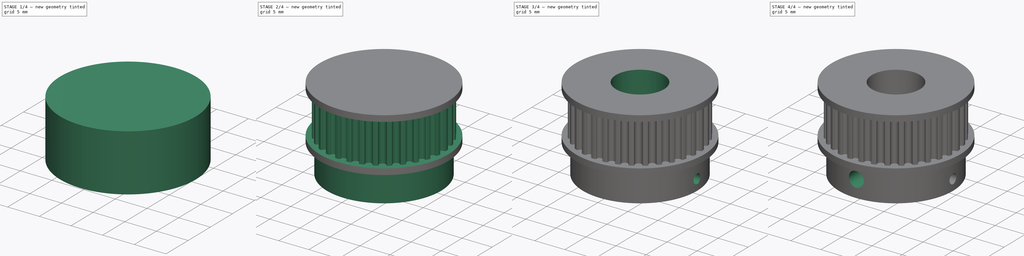
[diagram: build sequence overview — one tinted view per stage of 4, left to right]
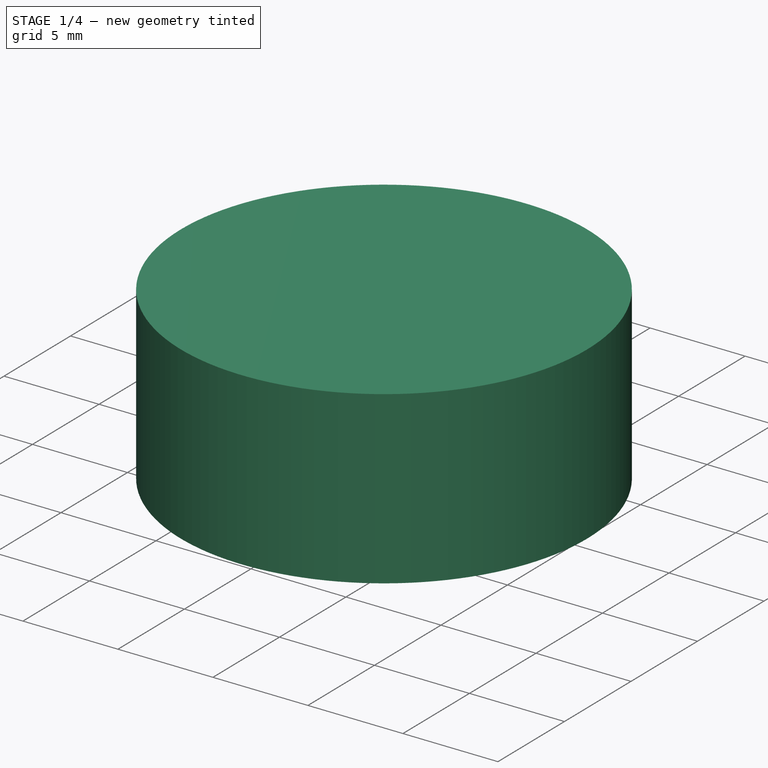
[diagram: stage 1 of 4 — iso view after this stage's code; geometry added in this stage tinted green]
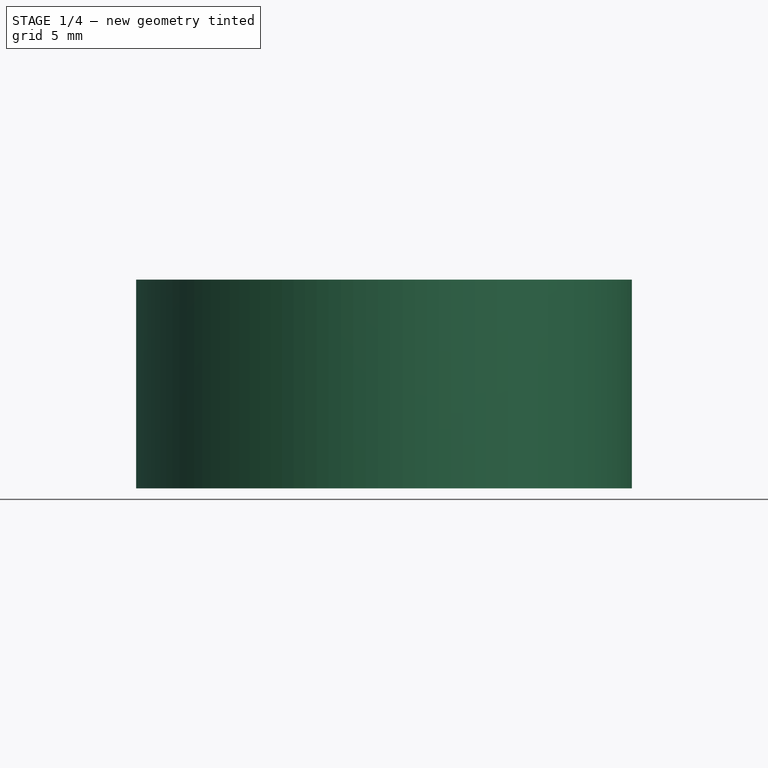
[diagram: stage 1 of 4 — front view after this stage's code; geometry added in this stage tinted green]
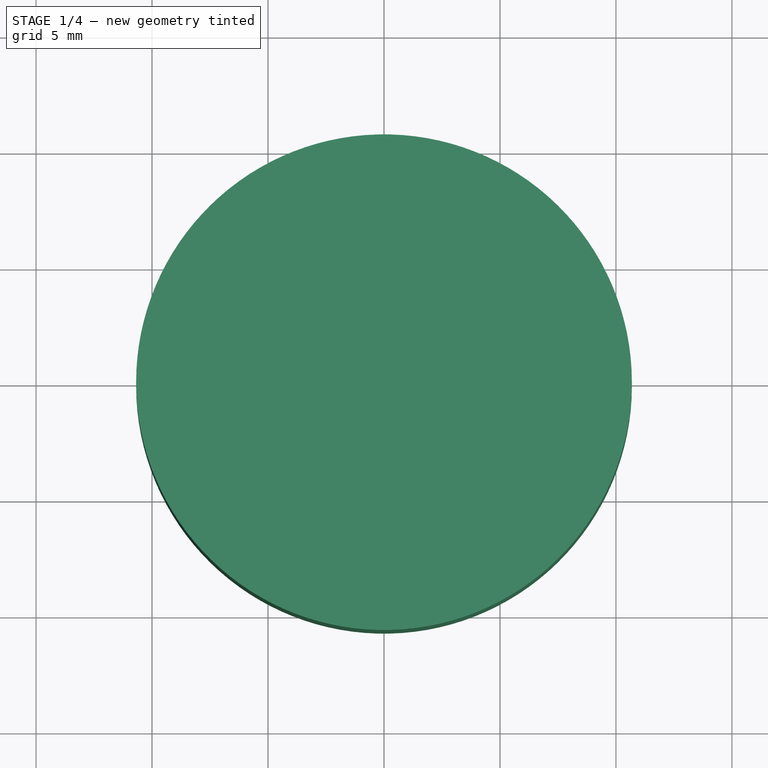
[diagram: stage 1 of 4 — top view after this stage's code; geometry added in this stage tinted green]
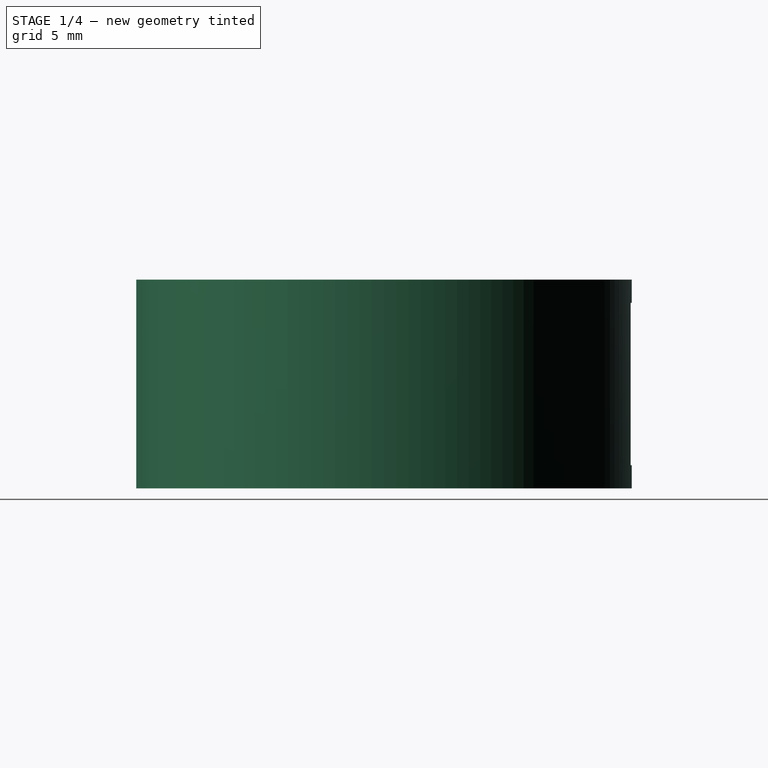
[diagram: stage 1 of 4 — right view after this stage's code; geometry added in this stage tinted green]
FCSTD DOCUMENT  (FreeCAD 0.19R)
Label: small_pulley
License: All rights reserved
LicenseURL: http://en.wikipedia.org/wiki/All_rights_reserved
objects: Sketcher::SketchObject×6, PartDesign::Hole×4, PartDesign::Pad×2, PartDesign::Pocket×2, Spreadsheet::Sheet×1, PartDesign::PolarPattern×1, PartDesign::Body×1
note: 24 computed .brp shape members not serialized (recipe doc carries the construction recipe); baked Part::Feature solids carry a one-line shape summary decoded from their .brp

FEATURE [Spreadsheet::Sheet] Spreadsheet
  cells = A1=No. of teeth; B1=Pitch diameter; C1=Dedentum Dia; D1=PCR; E1=Dedentum Radius; F1=Addentum Radius; G1=Flange Rad; H1=Shaft Dia; I1=Belt  width; J1=<< Properties definition; A2=n; B2=D; C2=d; D2=R; E2=r; F2=Ar; G2=F; H2=a; I2=w; J2=<< Variable Names; A3(n)=32; B3(D)==A3 * 2 / 3.141592; C3(d)==B3 - 2 * 1.126; D3(R)==B3 / 2; E3(r)==C3 / 2; F3(Ar)==D3 - 0.376; G3(F)==R + 0.5; H3(a)=8; I3(w)=6; J3=<< Variable Values; A4=Edit this; H4=Edit this; I4=Edit this
FEATURE [Sketcher::SketchObject] Sketch
  FullyConstrained = true
  MapMode = 5
  Support = -> [XY_Plane]
  expr: Constraints[1] = Spreadsheet.F
  sketch-geometry (1):
    g0: Circle CenterX=0 CenterY=0 CenterZ=0 NormalX=0 NormalY=0 NormalZ=1 AngleXU=0 Radius=10.6859
  constraints (2):
    c: Coincident(g0,g-1)
    c: Radius(g0) = 10.6859
FEATURE [PartDesign::Pad] Pad
  AllowMultiFace = false
  Direction = (1,1,1)
  Length = 9
  Length2 = 100
  Profile = -> Sketch
  Type = 0
  expr: Length = Spreadsheet.w * 1.5
FEATURE [Sketcher::SketchObject] Sketch001
  AttachmentOffset = pos=(0,0,-1) rot=(0,0,1;0rad)
  FullyConstrained = true
  MapMode = 5
  Placement = pos=(0,0,8) rot=(0,0,1;0rad)
  Support = -> [Pad]
  expr: Constraints[2] = Spreadsheet.r + 0.555
  expr: Constraints[14] = Spreadsheet.Ar
  expr: .AttachmentOffset.Base.z = -1 * Spreadsheet.w / 4 + 0.5
  sketch-geometry (8):
    g0: ArcOfCircle CenterX=0 CenterY=9.61492 CenterZ=0 NormalX=0 NormalY=0 NormalZ=1 AngleXU=0 Radius=0.555 StartAngle=3.06042 EndAngle=6.36436
    g1: ArcOfCircle CenterX=-0.703173 CenterY=9.65992 CenterZ=0 NormalX=0 NormalY=0 NormalZ=1 AngleXU=0 Radius=0.15 StartAngle=0 EndAngle=1.5708
    g2: ArcOfCircle CenterX=0.703173 CenterY=9.65992 CenterZ=0 NormalX=0 NormalY=0 NormalZ=1 AngleXU=0 Radius=0.15 StartAngle=1.5708 EndAngle=3.14159
    g3: LineSegment StartX=-0.703173 StartY=9.80992 StartZ=0 EndX=-1 EndY=9.80992 EndZ=0
    g4: LineSegment StartX=0.703173 StartY=9.80992 StartZ=0 EndX=1 EndY=9.80992 EndZ=0
    g5: LineSegment StartX=-1 StartY=9.80992 StartZ=0 EndX=-1.20388 EndY=11.8099 EndZ=0
    g6: LineSegment StartX=-1.20388 StartY=11.8099 StartZ=0 EndX=1.20388 EndY=11.8099 EndZ=0
    g7: LineSegment StartX=1.20388 StartY=11.8099 StartZ=0 EndX=1 EndY=9.80992 EndZ=0
  constraints (27):
    c: PointOnObject(g0,g-2)
    c: Radius(g0) = 0.555
    c: DistanceY(g-1,g0) = 9.61492
    c: Coincident(g1,g0)
    c: Radius(g1) = 0.15
    c: Radius(g2) = 0.15
    c: Horizontal(g1,g2)
    c: Coincident(g3,g1)
    c: Horizontal(g3)
    c: Coincident(g4,g2)
    c: Horizontal(g4)
    c: DistanceX(g3,g4) = 2
    c: DistanceX(g3,g-1) = 1
    c: Coincident(g0,g2)
    c: DistanceY(g-1,g1) = 9.80992
    c: Horizontal(g0,g0)
    c: Horizontal(g0,g1)
    c: Vertical(g1,g1)
    c: Vertical(g2,g2)
    c: Coincident(g3,g5)
    c: Coincident(g5,g6)
    c: Horizontal(g6)
    c: Coincident(g6,g7)
    c: Coincident(g7,g4)
    c: DistanceY(g7,g7) = 2
    c: PointOnObject(g-1,g5)
    c: PointOnObject(g-1,g7)
FEATURE [PartDesign::Pocket] Pocket
  AllowMultiFace = false
  BaseFeature = -> Pad
  Length = 7
  Length2 = 100
  Profile = -> Sketch001
  Type = 0
  expr: Length = Spreadsheet.w + 1
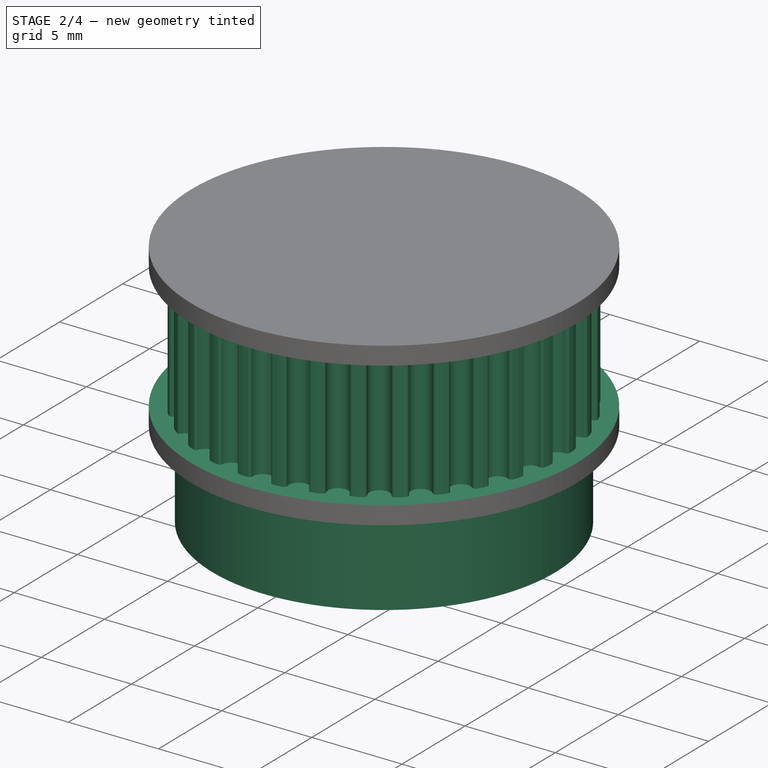
[diagram: stage 2 of 4 — iso view after this stage's code; geometry added in this stage tinted green]
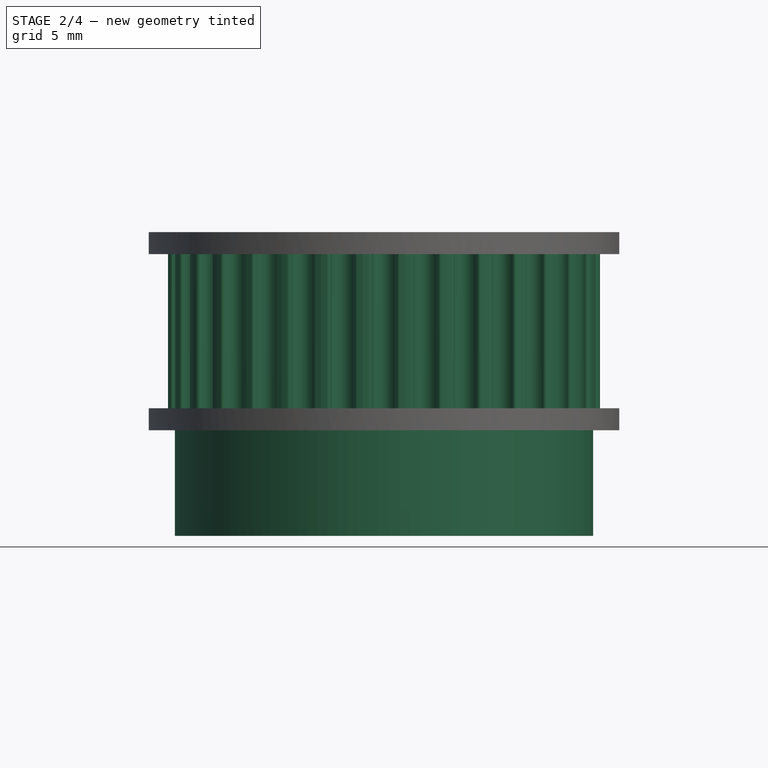
[diagram: stage 2 of 4 — front view after this stage's code; geometry added in this stage tinted green]
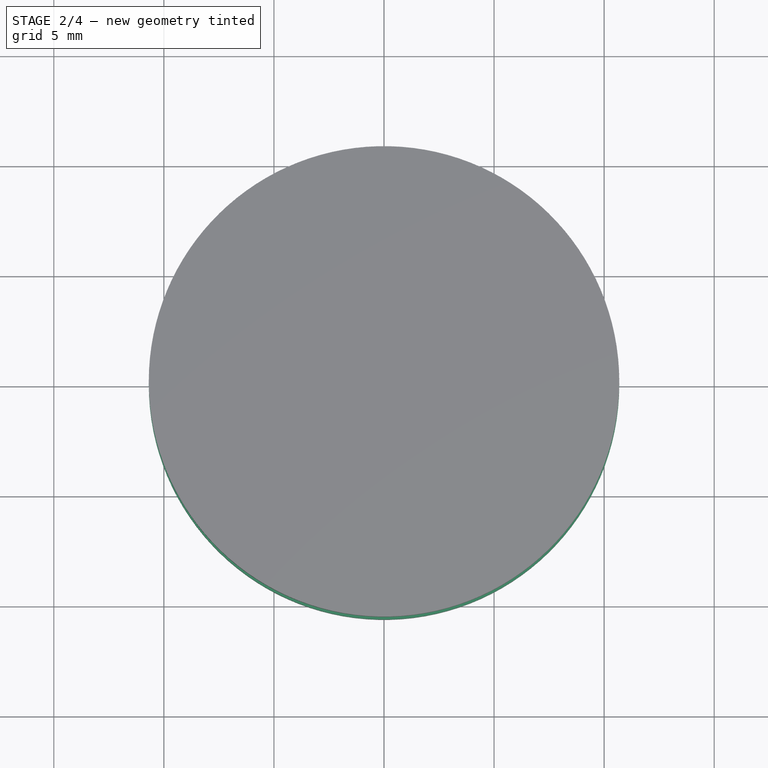
[diagram: stage 2 of 4 — top view after this stage's code; geometry added in this stage tinted green]
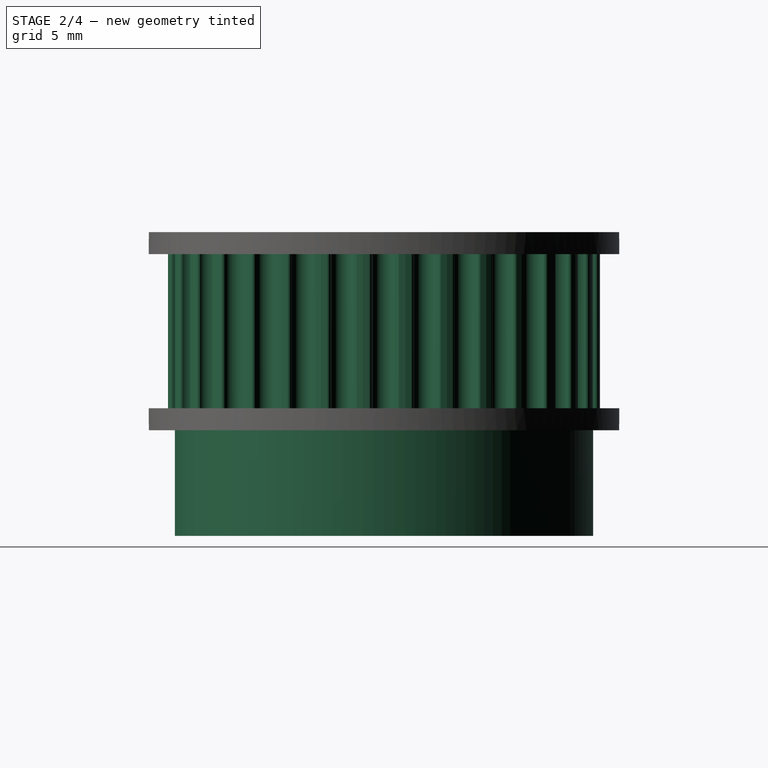
[diagram: stage 2 of 4 — right view after this stage's code; geometry added in this stage tinted green]
FEATURE [PartDesign::PolarPattern] PolarPattern
  Angle = 360
  Axis = -> Z_Axis
  BaseFeature = -> Pocket
  Occurrences = 32
  Originals = -> [Pocket]
  expr: Occurrences = Spreadsheet.n
FEATURE [Sketcher::SketchObject] Sketch002
  FullyConstrained = true
  Placement = pos=(0,0,0) rot=(1,0,0;3.14159rad)
  expr: Constraints[1] = Spreadsheet.a + 11
  sketch-geometry (1):
    g0: Circle CenterX=0 CenterY=0 CenterZ=0 NormalX=0 NormalY=0 NormalZ=1 AngleXU=0 Radius=9.5
  constraints (2):
    c: Coincident(g0,g-1)
    c: Diameter(g0) = 19
FEATURE [PartDesign::Pad] Pad001
  AllowMultiFace = false
  BaseFeature = -> PolarPattern
  Direction = (1,1,1)
  Length = 4.8
  Length2 = 100
  Profile = -> Sketch002
  Type = 0
  expr: Length = Spreadsheet.w * 0.8
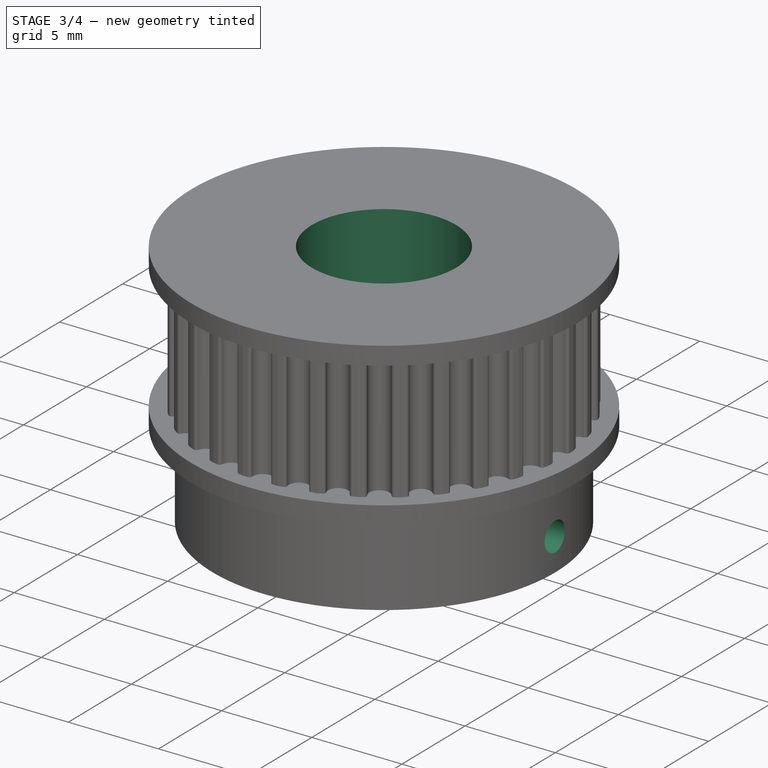
[diagram: stage 3 of 4 — iso view after this stage's code; geometry added in this stage tinted green]
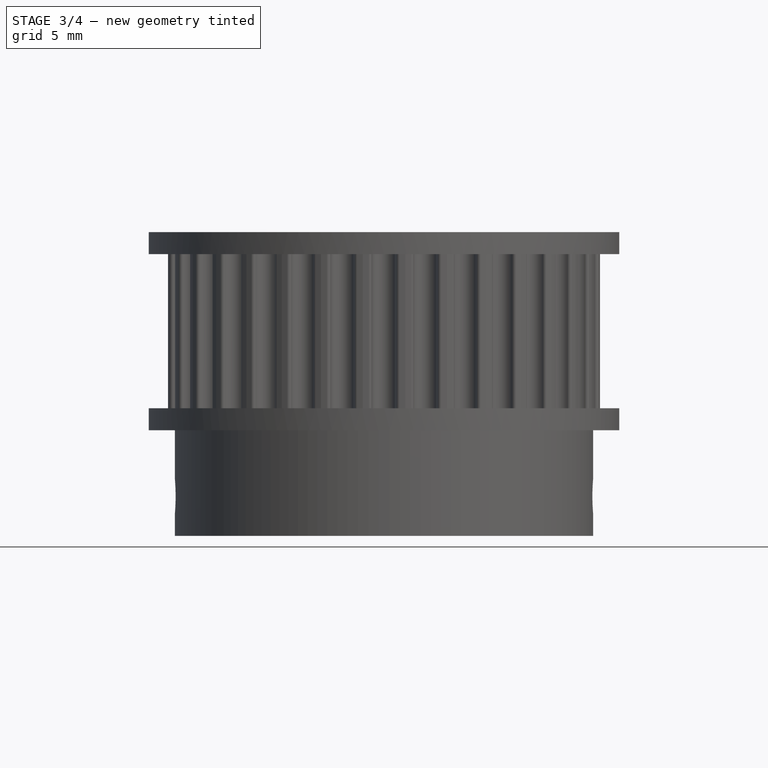
[diagram: stage 3 of 4 — front view after this stage's code; geometry added in this stage tinted green]
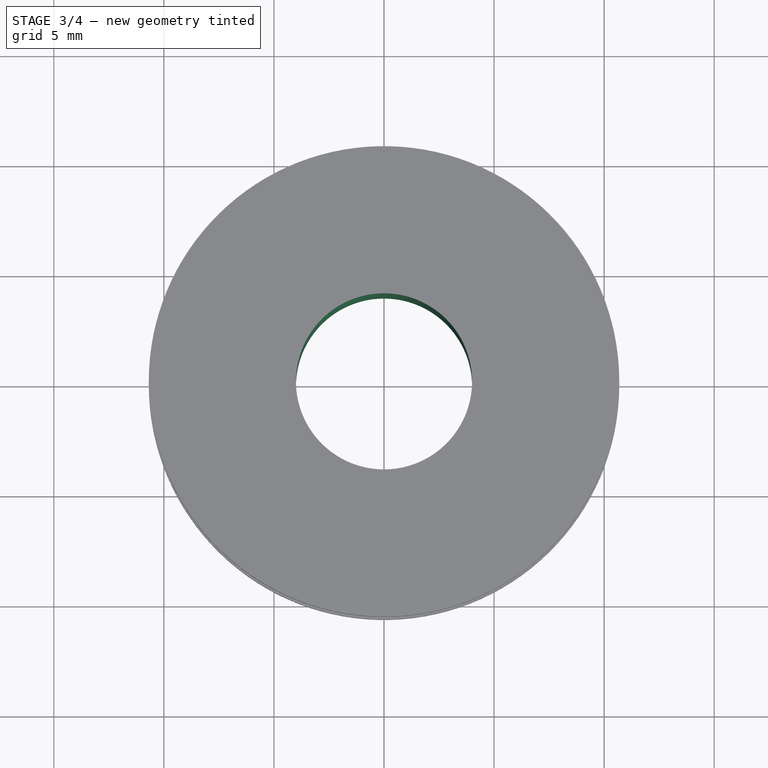
[diagram: stage 3 of 4 — top view after this stage's code; geometry added in this stage tinted green]
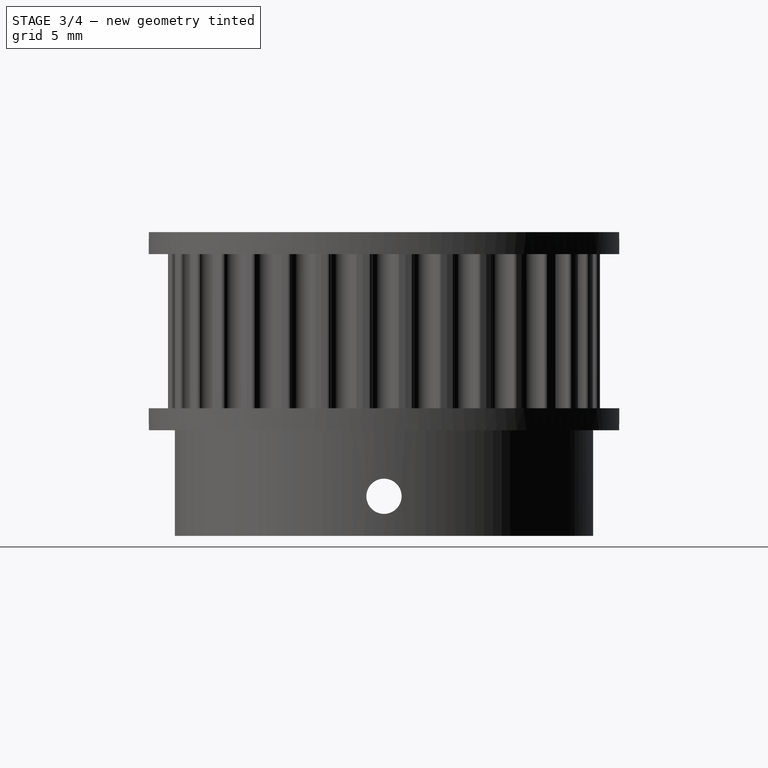
[diagram: stage 3 of 4 — right view after this stage's code; geometry added in this stage tinted green]
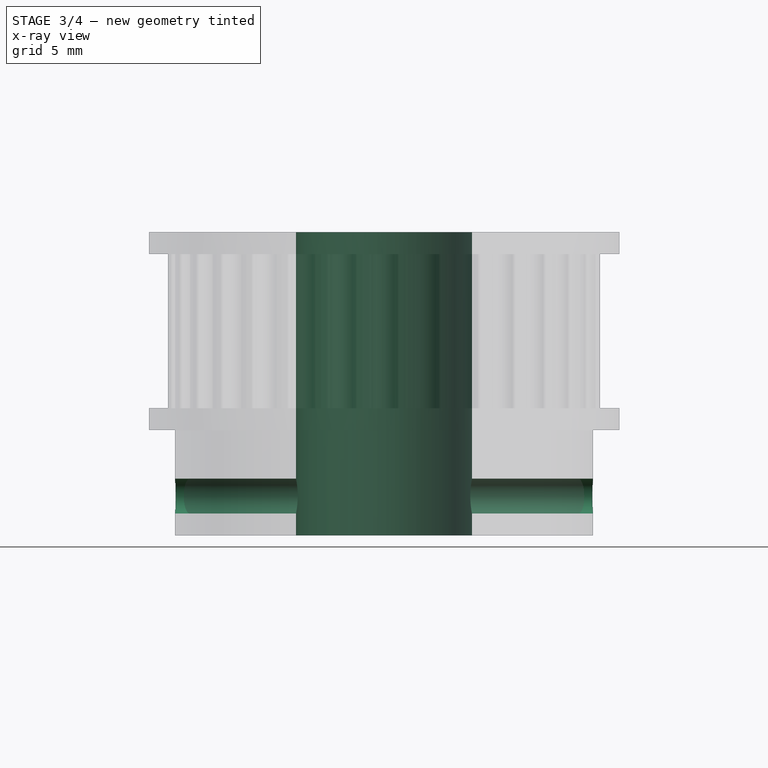
[diagram: stage 3 of 4 — x-ray composite at the front view; earlier geometry ghosted, this stage's added geometry solid]
FEATURE [Sketcher::SketchObject] Sketch003
  FullyConstrained = true
  Placement = pos=(0,0,0) rot=(1,0,0;3.14159rad)
  expr: Constraints[1] = Spreadsheet.a
  sketch-geometry (1):
    g0: Circle CenterX=0 CenterY=0 CenterZ=0 NormalX=0 NormalY=0 NormalZ=1 AngleXU=0 Radius=4
  constraints (2):
    c: Coincident(g0,g-1)
    c: Diameter(g0) = 8
FEATURE [PartDesign::Pocket] Pocket001
  AllowMultiFace = false
  BaseFeature = -> Pad001
  Length = 5
  Length2 = 100
  Midplane = true
  Profile = -> Sketch003
  Reversed = true
  Type = 1
FEATURE [Sketcher::SketchObject] Sketch004
  FullyConstrained = true
  Placement = pos=(0,0,0) rot=(0.57735,0.57735,0.57735;2.0944rad)
  sketch-geometry (1):
    g0: Circle CenterX=0 CenterY=-3 CenterZ=0 NormalX=0 NormalY=0 NormalZ=1 AngleXU=0 Radius=1
  constraints (3):
    c: PointOnObject(g0,g-2)
    c: DistanceY(g0,g-1) = 3
    c: Radius(g0) = 1
FEATURE [PartDesign::Hole] Hole
  BaseFeature = -> Pocket001
  Depth = 500
  DepthType = 0
  Diameter = 1.6
  DrillForDepth = false
  DrillPoint = 1
  DrillPointAngle = 118
  HoleCutCountersinkAngle = 90
  HoleCutCustomValues = false
  HoleCutDepth = 0
  HoleCutDiameter = 6.1
  HoleCutType = 0
  ModelActualThread = false
  Profile = -> Sketch004
  Tapered = false
  TaperedAngle = 90
  ThreadAngle = 60
  ThreadClass = 0
  ThreadCutOffInner = 0.0433013
  ThreadCutOffOuter = 0.0866025
  ThreadDirection = 0
  ThreadFit = 0
  ThreadPitch = 0.4
  ThreadSize = 6
  ThreadType = 1
  Threaded = true
FEATURE [PartDesign::Hole] Hole001
  BaseFeature = -> Hole
  Depth = 50
  DepthType = 0
  Diameter = 1.6
  DrillForDepth = false
  DrillPoint = 1
  DrillPointAngle = 118
  HoleCutCountersinkAngle = 90
  HoleCutCustomValues = false
  HoleCutDepth = 0
  HoleCutDiameter = 6.1
  HoleCutType = 0
  ModelActualThread = false
  Profile = -> Sketch004
  Reversed = true
  Tapered = false
  TaperedAngle = 90
  ThreadAngle = 60
  ThreadClass = 0
  ThreadCutOffInner = 0.0433013
  ThreadCutOffOuter = 0.0866025
  ThreadDirection = 0
  ThreadFit = 0
  ThreadPitch = 0.4
  ThreadSize = 6
  ThreadType = 1
  Threaded = true
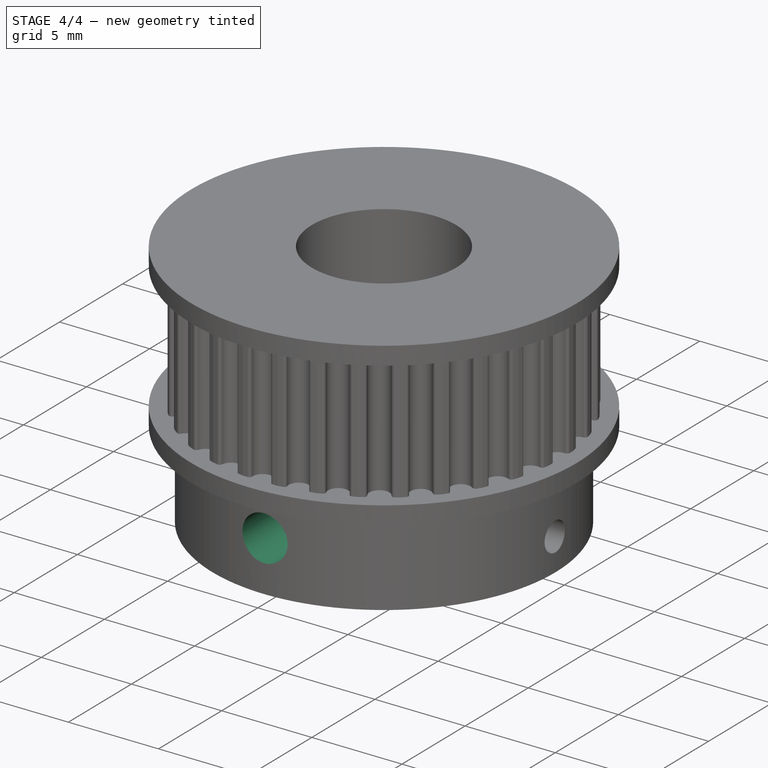
[diagram: stage 4 of 4 — iso view after this stage's code; geometry added in this stage tinted green]
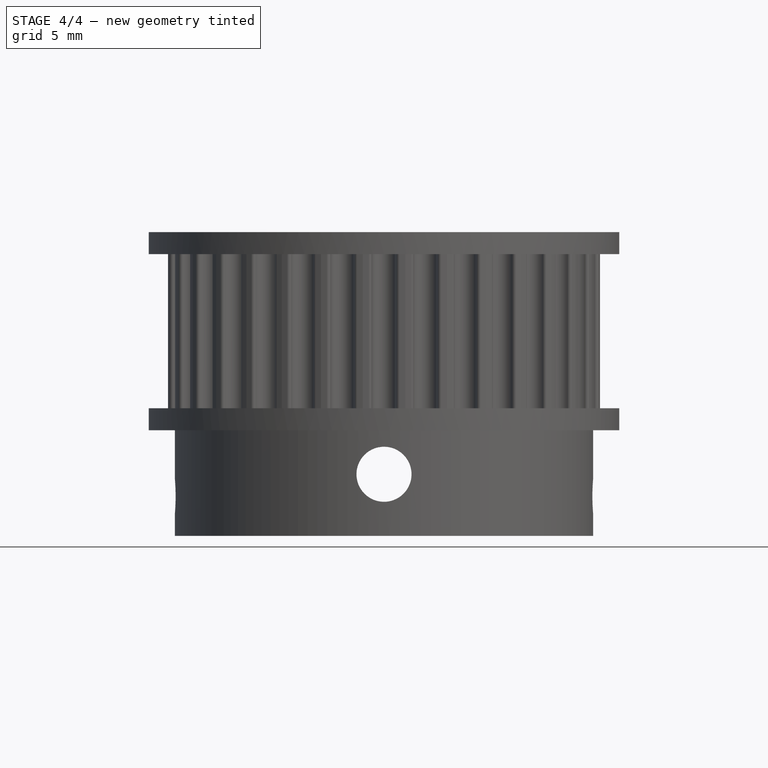
[diagram: stage 4 of 4 — front view after this stage's code; geometry added in this stage tinted green]
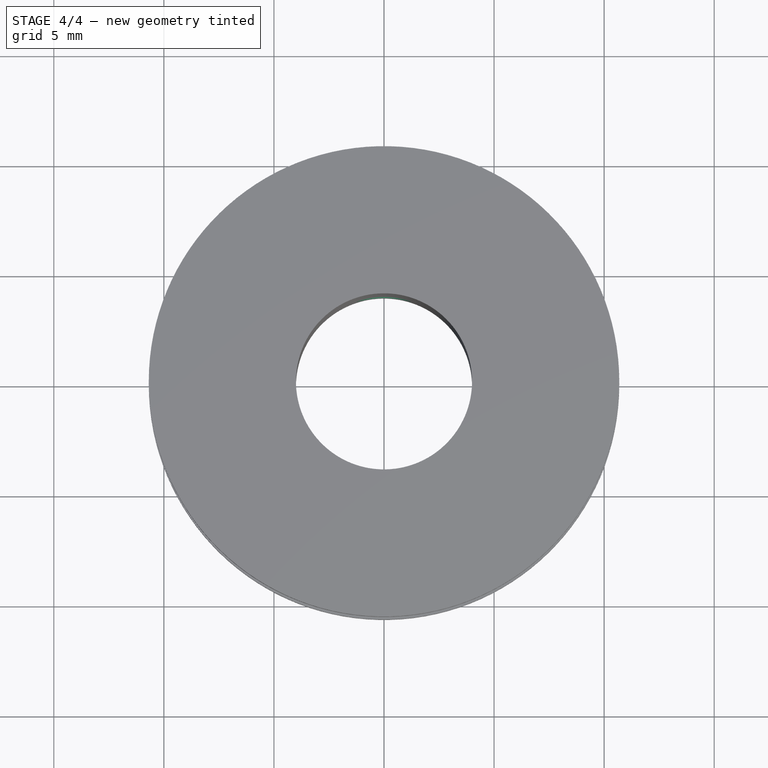
[diagram: stage 4 of 4 — top view after this stage's code; geometry added in this stage tinted green]
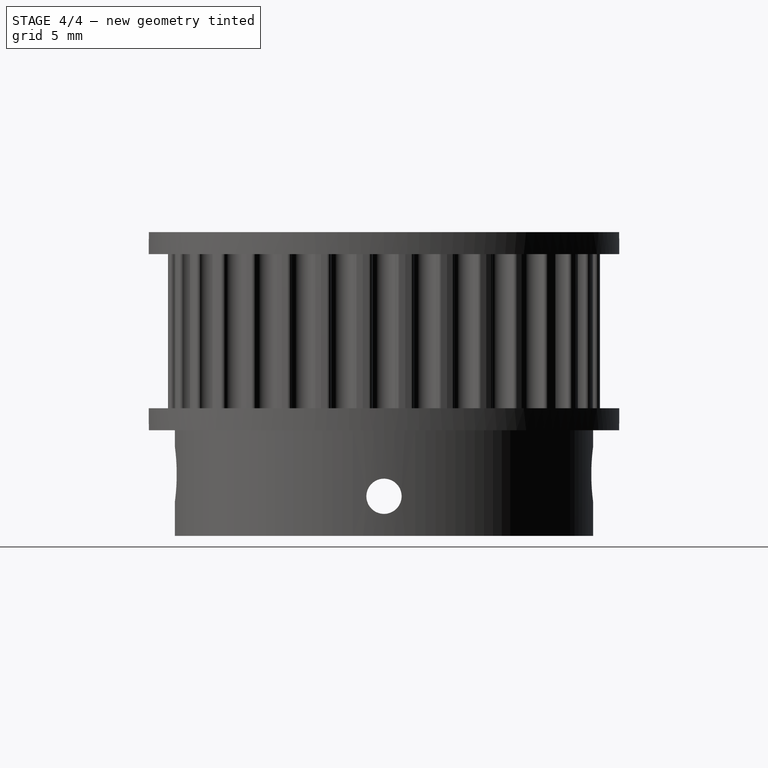
[diagram: stage 4 of 4 — right view after this stage's code; geometry added in this stage tinted green]
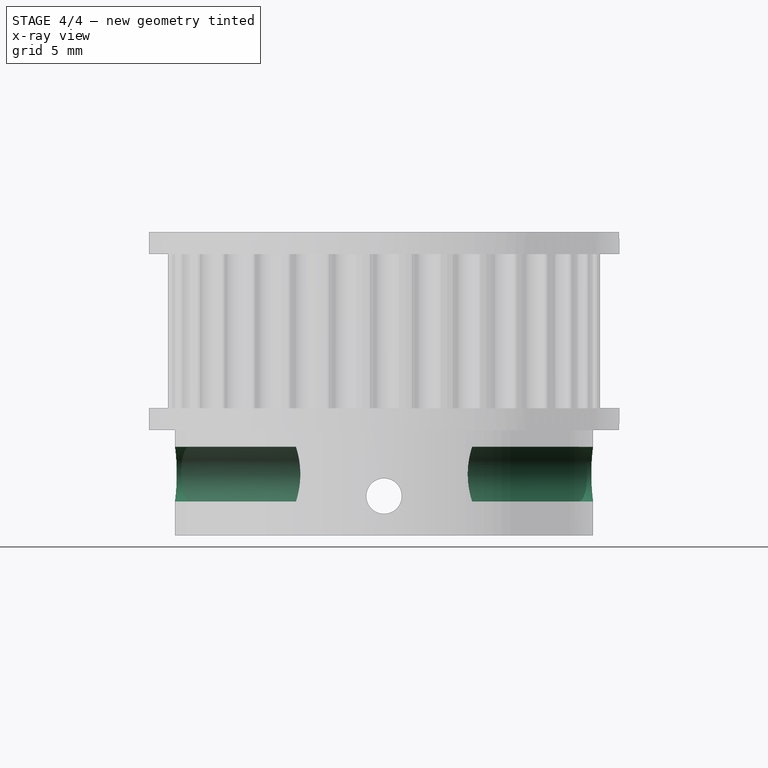
[diagram: stage 4 of 4 — x-ray composite at the right view; earlier geometry ghosted, this stage's added geometry solid]
FEATURE [Sketcher::SketchObject] Sketch005
  FullyConstrained = true
  Placement = pos=(0,0,0) rot=(1,0,0;1.5708rad)
  sketch-geometry (1):
    g0: Circle CenterX=0 CenterY=-2 CenterZ=0 NormalX=0 NormalY=0 NormalZ=1 AngleXU=0 Radius=1
  constraints (3):
    c: PointOnObject(g0,g-2)
    c: DistanceY(g0,g-1) = 2
    c: Radius(g0) = 1
FEATURE [PartDesign::Hole] Hole002
  BaseFeature = -> Hole001
  Depth = 50
  DepthType = 0
  Diameter = 2.5
  DrillForDepth = false
  DrillPoint = 1
  DrillPointAngle = 118
  HoleCutCountersinkAngle = 90
  HoleCutCustomValues = false
  HoleCutDepth = 0
  HoleCutDiameter = 6.1
  HoleCutType = 0
  ModelActualThread = false
  Profile = -> Sketch005
  Tapered = false
  TaperedAngle = 90
  ThreadAngle = 60
  ThreadClass = 0
  ThreadCutOffInner = 0.0541266
  ThreadCutOffOuter = 0.108253
  ThreadDirection = 0
  ThreadFit = 0
  ThreadPitch = 0.5
  ThreadSize = 9
  ThreadType = 1
  Threaded = true
FEATURE [PartDesign::Hole] Hole003
  BaseFeature = -> Hole002
  Depth = 50
  DepthType = 0
  Diameter = 2.5
  DrillForDepth = false
  DrillPoint = 1
  DrillPointAngle = 118
  HoleCutCountersinkAngle = 90
  HoleCutCustomValues = false
  HoleCutDepth = 0
  HoleCutDiameter = 6.1
  HoleCutType = 0
  ModelActualThread = false
  Profile = -> Sketch005
  Reversed = true
  Tapered = false
  TaperedAngle = 90
  ThreadAngle = 60
  ThreadClass = 0
  ThreadCutOffInner = 0.0541266
  ThreadCutOffOuter = 0.108253
  ThreadDirection = 0
  ThreadFit = 0
  ThreadPitch = 0.5
  ThreadSize = 9
  ThreadType = 1
  Threaded = true
FEATURE [PartDesign::Body] Body
  Group = -> [Sketch,Pad,Sketch001,Pocket,PolarPattern,Sketch002,Pad001,Sketch003,Pocket001,Sketch004,Hole,Hole001,Sketch005,Hole002,Hole003]
  Origin = -> Origin
  Tip = -> Hole003
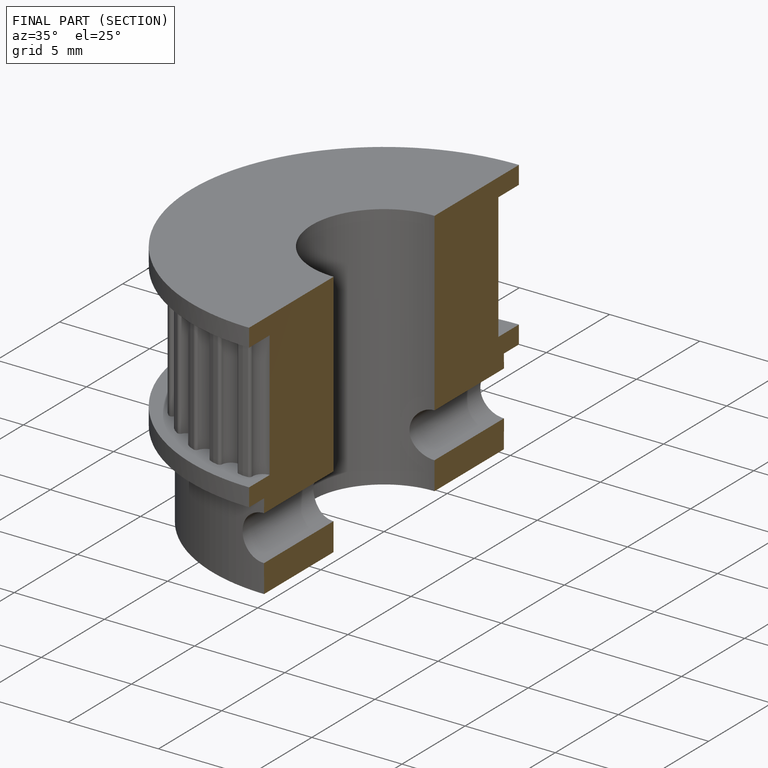
[diagram: finished part — half-section view (interior)]
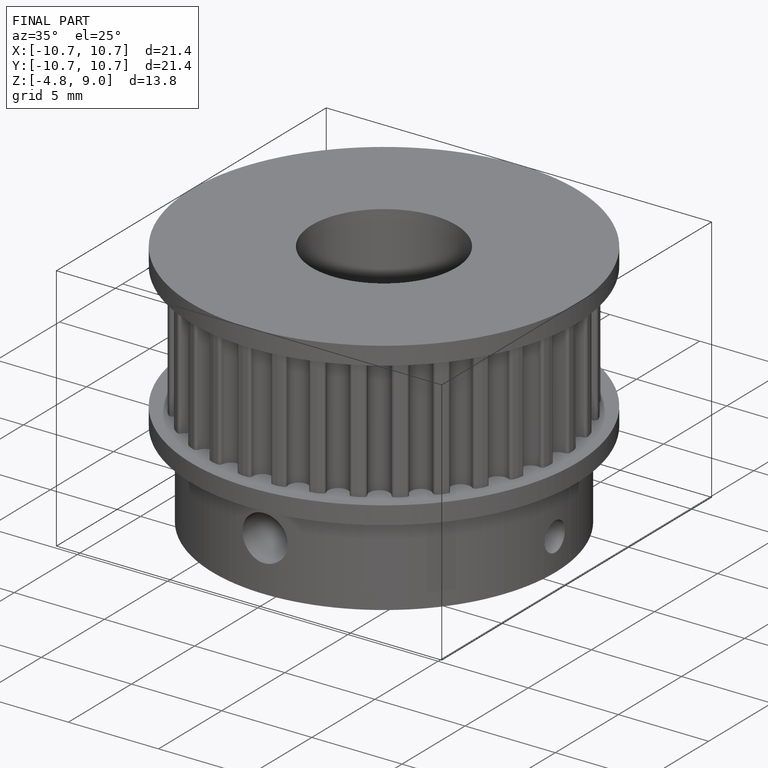
[diagram: finished part — iso view with bounding-box wireframe]
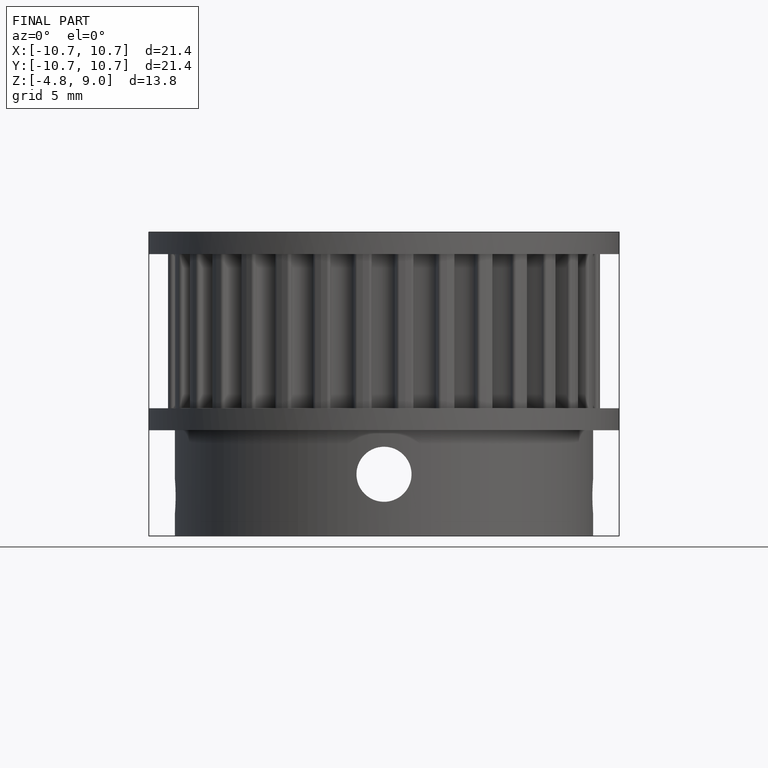
[diagram: finished part — front view with bounding-box wireframe]
